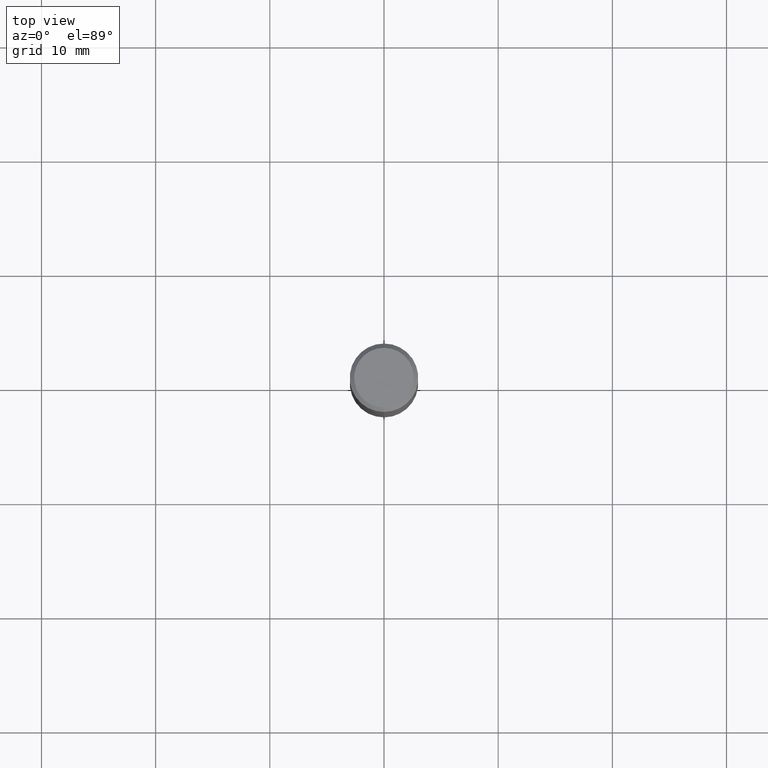
[diagram: clean part render]
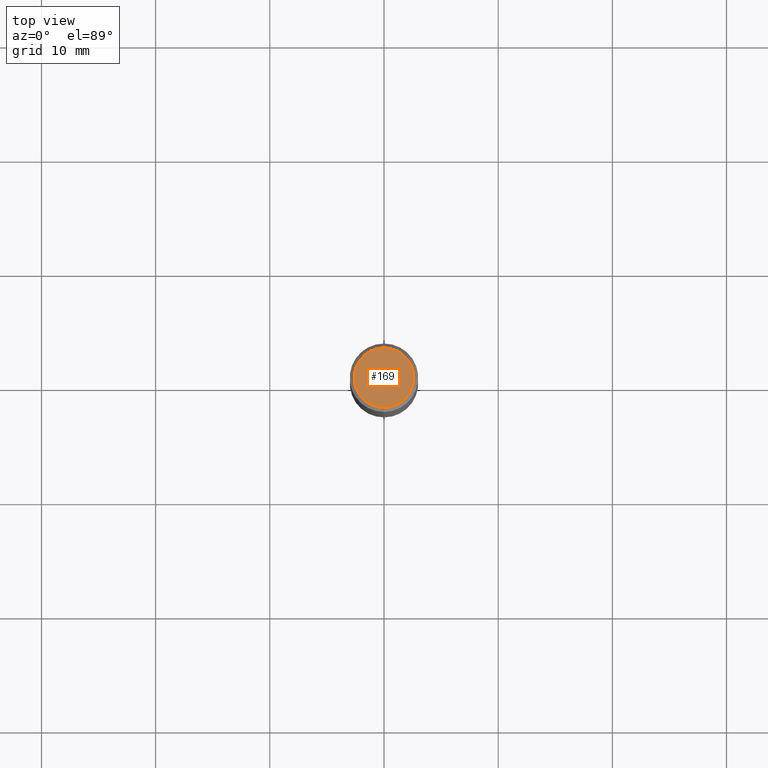
[diagram: same view with one face highlighted and labeled with its STEP entity id]
A machine part, top view. The second image highlights one B-rep face of the part: STEP entity #169.
In plain terms, the highlighted planar face has unit normal (0, -0, -1).
Its self-contained STEP definition (entity closure, byte-faithful):
#6 = CIRCLE ( 'NONE', #323, 0.1031000000000000111 ) ;
#38 = CARTESIAN_POINT ( 'NONE',  ( 7.723156721521011834E-16, 0.1031000000000000111, -3.887509258146911569E-16 ) ) ;
#55 = CARTESIAN_POINT ( 'NONE',  ( -7.587710785535310407E-16, -0.1031000000000000111, 3.312380692850428747E-16 ) ) ;
#90 = AXIS2_PLACEMENT_3D ( 'NONE', #297, #129, #126 ) ;
#126 = DIRECTION ( 'NONE',  ( 6.982962677686265922E-15, 1.000000000000000000, -3.491702207079214016E-15 ) ) ;
#128 = ORIENTED_EDGE ( 'NONE', *, *, #393, .T. ) ;
#129 = DIRECTION ( 'NONE',  ( 2.445314574720221172E-29, -3.491702207079214016E-15, -1.000000000000000000 ) ) ;
#149 = DIRECTION ( 'NONE',  ( -6.982962677686265922E-15, -1.000000000000000000, 3.491702207079214016E-15 ) ) ;
#169 = ADVANCED_FACE ( 'NONE', ( #488 ), #306, .F. ) ;
#196 = DIRECTION ( 'NONE',  ( -2.445314574720221452E-29, 3.491702207079214016E-15, 1.000000000000000000 ) ) ;
#264 = VERTEX_POINT ( 'NONE', #38 ) ;
#275 = DIRECTION ( 'NONE',  ( -2.445314574720221452E-29, 3.491702207079214016E-15, 1.000000000000000000 ) ) ;
#292 = VERTEX_POINT ( 'NONE', #55 ) ;
#297 = CARTESIAN_POINT ( 'NONE',  ( 7.199434520694541042E-16, 0.1031000000000000111, -1.353360122366559931E-16 ) ) ;
#306 = PLANE ( 'NONE',  #90 ) ;
#323 = AXIS2_PLACEMENT_3D ( 'NONE', #449, #275, #149 ) ;
#367 = CARTESIAN_POINT ( 'NONE',  ( 7.024477919222300476E-46, -1.005144752683258765E-31, -2.875642826482414108E-17 ) ) ;
#393 = EDGE_CURVE ( 'NONE', #292, #264, #6, .T. ) ;
#419 = ORIENTED_EDGE ( 'NONE', *, *, #495, .T. ) ;
#449 = CARTESIAN_POINT ( 'NONE',  ( 7.024477919222300476E-46, -1.005144752683258765E-31, -2.875642826482414108E-17 ) ) ;
#470 = EDGE_LOOP ( 'NONE', ( #419, #128 ) ) ;
#471 = AXIS2_PLACEMENT_3D ( 'NONE', #367, #196, #557 ) ;
#488 = FACE_OUTER_BOUND ( 'NONE', #470, .T. ) ;
#495 = EDGE_CURVE ( 'NONE', #264, #292, #547, .T. ) ;
#547 = CIRCLE ( 'NONE', #471, 0.1031000000000000111 ) ;
#557 = DIRECTION ( 'NONE',  ( -6.982962677686265922E-15, -1.000000000000000000, 3.491702207079214016E-15 ) ) ;